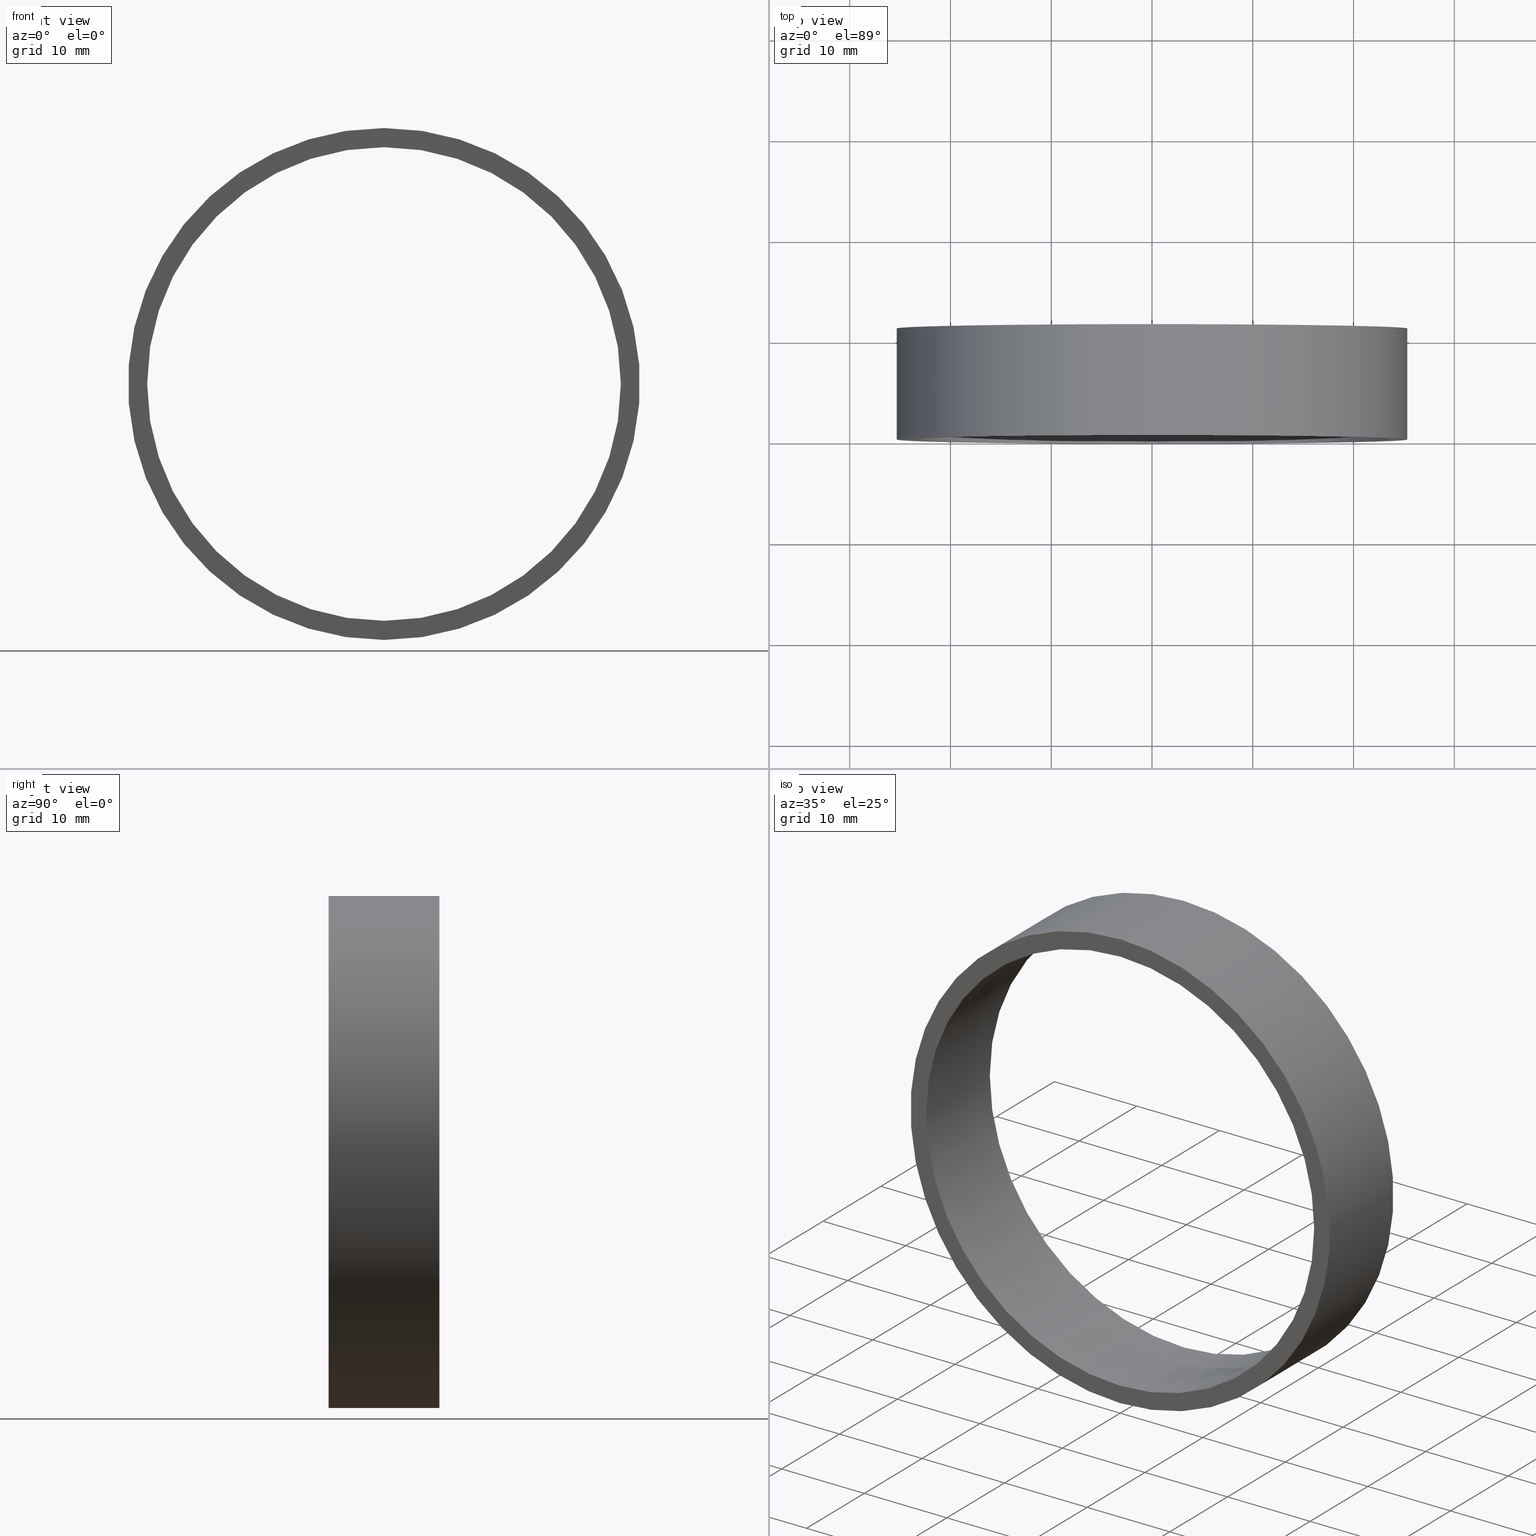
[diagram: canonical four-view strip — front | top / right | iso, engineering-drawing reading convention]
A machine part, canonical four-view strip (front | top / right | iso — engineering-drawing reading convention). The complete STEP part file that produces these views, byte-faithful:
ISO-10303-21;
HEADER;
FILE_DESCRIPTION (( 'STEP AP214' ),
    '1' );
FILE_NAME ('504019.STEP',
    '2019-09-05T06:47:34',
    ( 'user' ),
    ( '΢���й�' ),
    'SwSTEP 2.0',
    'SolidWorks 2016',
    '' );
FILE_SCHEMA (( 'AUTOMOTIVE_DESIGN' ));
ENDSEC;

DATA;
#1 = AXIS2_PLACEMENT_3D ( 'NONE', #43, #175, #105 ) ;
#2 = CARTESIAN_POINT ( 'NONE',  ( 0.0000000000000000000, 11.00000000000000000, 0.0000000000000000000 ) ) ;
#3 = ORIENTED_EDGE ( 'NONE', *, *, #157, .T. ) ;
#4 = AXIS2_PLACEMENT_3D ( 'NONE', #34, #112, #230 ) ;
#5 =( GEOMETRIC_REPRESENTATION_CONTEXT ( 3 ) GLOBAL_UNCERTAINTY_ASSIGNED_CONTEXT ( ( #114 ) ) GLOBAL_UNIT_ASSIGNED_CONTEXT ( ( #180, #206, #178 ) ) REPRESENTATION_CONTEXT ( 'NONE', 'WORKASPACE' ) );
#6 = EDGE_CURVE ( 'NONE', #135, #198, #100, .T. ) ;
#7 = ORIENTED_EDGE ( 'NONE', *, *, #42, .T. ) ;
#8 = AXIS2_PLACEMENT_3D ( 'NONE', #194, #132, #152 ) ;
#9 = FILL_AREA_STYLE ('',( #11 ) ) ;
#10 = DIRECTION ( 'NONE',  ( -0.0000000000000000000, -1.000000000000000000, -0.0000000000000000000 ) ) ;
#11 = FILL_AREA_STYLE_COLOUR ( '', #116 ) ;
#12 = AXIS2_PLACEMENT_3D ( 'NONE', #227, #140, #109 ) ;
#13 = DIRECTION ( 'NONE',  ( 0.0000000000000000000, 0.0000000000000000000, -1.000000000000000000 ) ) ;
#14 = VECTOR ( 'NONE', #188, 1000.000000000000000 ) ;
#15 = SURFACE_STYLE_USAGE ( .BOTH. , #128 ) ;
#16 = CARTESIAN_POINT ( 'NONE',  ( 2.877919977996280700E-015, 11.00000000000000000, 23.50000000000000400 ) ) ;
#17 = AXIS2_PLACEMENT_3D ( 'NONE', #123, #48, #89 ) ;
#18 = ORIENTED_EDGE ( 'NONE', *, *, #213, .F. ) ;
#19 = DIRECTION ( 'NONE',  ( 0.0000000000000000000, 0.0000000000000000000, 1.000000000000000000 ) ) ;
#20 = DIRECTION ( 'NONE',  ( 0.0000000000000000000, 0.0000000000000000000, 1.000000000000000000 ) ) ;
#21 = EDGE_CURVE ( 'NONE', #144, #159, #173, .T. ) ;
#22 =( LENGTH_UNIT ( ) NAMED_UNIT ( * ) SI_UNIT ( .MILLI., .METRE. ) );
#23 =( NAMED_UNIT ( * ) SI_UNIT ( $, .STERADIAN. ) SOLID_ANGLE_UNIT ( ) );
#24 = MECHANICAL_DESIGN_GEOMETRIC_PRESENTATION_REPRESENTATION (  '', ( #76 ), #207 ) ;
#25 = DIRECTION ( 'NONE',  ( 1.000000000000000000, 0.0000000000000000000, 0.0000000000000000000 ) ) ;
#26 = PRESENTATION_LAYER_ASSIGNMENT (  '', '', ( #139 ) ) ;
#27 = FACE_BOUND ( 'NONE', #98, .T. ) ;
#28 = AXIS2_PLACEMENT_3D ( 'NONE', #38, #102, #40 ) ;
#29 = CARTESIAN_POINT ( 'NONE',  ( 3.110602869834276900E-015, 11.00000000000000000, 25.39999999999999900 ) ) ;
#30 = FACE_OUTER_BOUND ( 'NONE', #162, .T. ) ;
#31 =( GEOMETRIC_REPRESENTATION_CONTEXT ( 3 ) GLOBAL_UNCERTAINTY_ASSIGNED_CONTEXT ( ( #158 ) ) GLOBAL_UNIT_ASSIGNED_CONTEXT ( ( #222, #225, #54 ) ) REPRESENTATION_CONTEXT ( 'NONE', 'WORKASPACE' ) );
#32 =( LENGTH_UNIT ( ) NAMED_UNIT ( * ) SI_UNIT ( .MILLI., .METRE. ) );
#33 = ORIENTED_EDGE ( 'NONE', *, *, #80, .T. ) ;
#34 = CARTESIAN_POINT ( 'NONE',  ( 0.0000000000000000000, 0.0000000000000000000, 0.0000000000000000000 ) ) ;
#35 = FACE_OUTER_BOUND ( 'NONE', #228, .T. ) ;
#36 = COLOUR_RGB ( '',1.000000000000000000, 1.000000000000000000, 1.000000000000000000 ) ;
#37 = ORIENTED_EDGE ( 'NONE', *, *, #81, .T. ) ;
#38 = CARTESIAN_POINT ( 'NONE',  ( 0.0000000000000000000, 11.00000000000000000, 0.0000000000000000000 ) ) ;
#39 = EDGE_CURVE ( 'NONE', #144, #168, #244, .T. ) ;
#40 = DIRECTION ( 'NONE',  ( 0.0000000000000000000, 0.0000000000000000000, -1.000000000000000000 ) ) ;
#41 = SHAPE_DEFINITION_REPRESENTATION ( #155, #125 ) ;
#42 = EDGE_CURVE ( 'NONE', #159, #192, #110, .T. ) ;
#43 = CARTESIAN_POINT ( 'NONE',  ( 0.0000000000000000000, 11.00000000000000000, 0.0000000000000000000 ) ) ;
#44 = PRODUCT_DEFINITION ( 'δ֪', '', #115, #161 ) ;
#45 = FILL_AREA_STYLE ('',( #199 ) ) ;
#46 = AXIS2_PLACEMENT_3D ( 'NONE', #150, #52, #237 ) ;
#47 = ORIENTED_EDGE ( 'NONE', *, *, #80, .F. ) ;
#48 = DIRECTION ( 'NONE',  ( 0.0000000000000000000, 1.000000000000000000, 0.0000000000000000000 ) ) ;
#49 = CARTESIAN_POINT ( 'NONE',  ( 0.0000000000000000000, 0.0000000000000000000, 0.0000000000000000000 ) ) ;
#50 = DIRECTION ( 'NONE',  ( 0.0000000000000000000, 0.0000000000000000000, 1.000000000000000000 ) ) ;
#51 = ORIENTED_EDGE ( 'NONE', *, *, #39, .F. ) ;
#52 = DIRECTION ( 'NONE',  ( 0.0000000000000000000, 1.000000000000000000, 0.0000000000000000000 ) ) ;
#53 = CARTESIAN_POINT ( 'NONE',  ( 0.0000000000000000000, 0.0000000000000000000, -23.50000000000000400 ) ) ;
#54 =( NAMED_UNIT ( * ) SI_UNIT ( $, .STERADIAN. ) SOLID_ANGLE_UNIT ( ) );
#55 = FACE_OUTER_BOUND ( 'NONE', #131, .T. ) ;
#56 = SURFACE_STYLE_FILL_AREA ( #219 ) ;
#57 = EDGE_LOOP ( 'NONE', ( #111, #149 ) ) ;
#58 = UNCERTAINTY_MEASURE_WITH_UNIT (LENGTH_MEASURE( 1.000000000000000100E-005 ), #22, 'distance_accuracy_value', 'NONE');
#59 = SURFACE_SIDE_STYLE ('',( #79 ) ) ;
#60 = STYLED_ITEM ( 'NONE', ( #190 ), #99 ) ;
#61 = FILL_AREA_STYLE_COLOUR ( '', #234 ) ;
#62 =( GEOMETRIC_REPRESENTATION_CONTEXT ( 3 ) GLOBAL_UNCERTAINTY_ASSIGNED_CONTEXT ( ( #232 ) ) GLOBAL_UNIT_ASSIGNED_CONTEXT ( ( #231, #223, #23 ) ) REPRESENTATION_CONTEXT ( 'NONE', 'WORKASPACE' ) );
#63 = LINE ( 'NONE', #29, #82 ) ;
#64 = MECHANICAL_DESIGN_GEOMETRIC_PRESENTATION_REPRESENTATION (  '', ( #164 ), #101 ) ;
#65 = PLANE ( 'NONE',  #12 ) ;
#66 = DIRECTION ( 'NONE',  ( 0.0000000000000000000, 1.000000000000000000, 0.0000000000000000000 ) ) ;
#67 = DIRECTION ( 'NONE',  ( 0.0000000000000000000, 0.0000000000000000000, 1.000000000000000000 ) ) ;
#68 = EDGE_CURVE ( 'NONE', #168, #192, #63, .T. ) ;
#69 = ORIENTED_EDGE ( 'NONE', *, *, #157, .F. ) ;
#70 = SURFACE_STYLE_USAGE ( .BOTH. , #195 ) ;
#71 = AXIS2_PLACEMENT_3D ( 'NONE', #88, #66, #147 ) ;
#72 = ORIENTED_EDGE ( 'NONE', *, *, #154, .T. ) ;
#73 = SURFACE_STYLE_FILL_AREA ( #9 ) ;
#74 = CARTESIAN_POINT ( 'NONE',  ( 0.0000000000000000000, 11.00000000000000000, 0.0000000000000000000 ) ) ;
#75 = CYLINDRICAL_SURFACE ( 'NONE', #197, 23.50000000000000400 ) ;
#76 = STYLED_ITEM ( 'NONE', ( #239 ), #108 ) ;
#77 = CARTESIAN_POINT ( 'NONE',  ( 0.0000000000000000000, 11.00000000000000000, 0.0000000000000000000 ) ) ;
#78 = AXIS2_PLACEMENT_3D ( 'NONE', #148, #215, #233 ) ;
#79 = SURFACE_STYLE_FILL_AREA ( #45 ) ;
#80 = EDGE_CURVE ( 'NONE', #189, #134, #166, .T. ) ;
#81 = EDGE_CURVE ( 'NONE', #198, #135, #92, .T. ) ;
#82 = VECTOR ( 'NONE', #196, 1000.000000000000000 ) ;
#83 = EDGE_LOOP ( 'NONE', ( #18, #138, #3, #95 ) ) ;
#84 = DIRECTION ( 'NONE',  ( -0.0000000000000000000, -1.000000000000000000, -0.0000000000000000000 ) ) ;
#85 =( NAMED_UNIT ( * ) PLANE_ANGLE_UNIT ( ) SI_UNIT ( $, .RADIAN. ) );
#86 = ADVANCED_FACE ( 'NONE', ( #209, #27 ), #182, .F. ) ;
#87 = PRESENTATION_LAYER_ASSIGNMENT (  '', '', ( #164 ) ) ;
#88 = CARTESIAN_POINT ( 'NONE',  ( 0.0000000000000000000, 0.0000000000000000000, 0.0000000000000000000 ) ) ;
#89 = DIRECTION ( 'NONE',  ( 0.0000000000000000000, 0.0000000000000000000, 1.000000000000000000 ) ) ;
#90 = CARTESIAN_POINT ( 'NONE',  ( 3.110602869834276900E-015, 11.00000000000000000, 25.39999999999999900 ) ) ;
#91 = CARTESIAN_POINT ( 'NONE',  ( 0.0000000000000000000, 0.0000000000000000000, 0.0000000000000000000 ) ) ;
#92 = CIRCLE ( 'NONE', #126, 23.50000000000000400 ) ;
#93 = EDGE_CURVE ( 'NONE', #135, #134, #186, .T. ) ;
#94 = APPLICATION_CONTEXT ( 'automotive_design' ) ;
#95 = ORIENTED_EDGE ( 'NONE', *, *, #21, .F. ) ;
#96 = COLOUR_RGB ( '',1.000000000000000000, 1.000000000000000000, 1.000000000000000000 ) ;
#97 =( NAMED_UNIT ( * ) SI_UNIT ( $, .STERADIAN. ) SOLID_ANGLE_UNIT ( ) );
#98 = EDGE_LOOP ( 'NONE', ( #179, #33 ) ) ;
#99 = MANIFOLD_SOLID_BREP ( '͹̨-����1', #214 ) ;
#100 = CIRCLE ( 'NONE', #46, 23.50000000000000400 ) ;
#101 =( GEOMETRIC_REPRESENTATION_CONTEXT ( 3 ) GLOBAL_UNCERTAINTY_ASSIGNED_CONTEXT ( ( #58 ) ) GLOBAL_UNIT_ASSIGNED_CONTEXT ( ( #22, #170, #97 ) ) REPRESENTATION_CONTEXT ( 'NONE', 'WORKASPACE' ) );
#102 = DIRECTION ( 'NONE',  ( -0.0000000000000000000, -1.000000000000000000, -0.0000000000000000000 ) ) ;
#103 = ORIENTED_EDGE ( 'NONE', *, *, #154, .F. ) ;
#104 = ORIENTED_EDGE ( 'NONE', *, *, #68, .F. ) ;
#105 = DIRECTION ( 'NONE',  ( 0.0000000000000000000, 0.0000000000000000000, 1.000000000000000000 ) ) ;
#106 = FACE_OUTER_BOUND ( 'NONE', #83, .T. ) ;
#107 = CARTESIAN_POINT ( 'NONE',  ( 0.0000000000000000000, 11.00000000000000000, -25.39999999999999900 ) ) ;
#108 = ADVANCED_FACE ( 'NONE', ( #55 ), #75, .F. ) ;
#109 = DIRECTION ( 'NONE',  ( 0.0000000000000000000, -0.0000000000000000000, 1.000000000000000000 ) ) ;
#110 = CIRCLE ( 'NONE', #130, 25.39999999999999900 ) ;
#111 = ORIENTED_EDGE ( 'NONE', *, *, #6, .F. ) ;
#112 = DIRECTION ( 'NONE',  ( 0.0000000000000000000, 1.000000000000000000, 0.0000000000000000000 ) ) ;
#113 = APPLICATION_PROTOCOL_DEFINITION ( 'draft international standard', 'automotive_design', 1998, #193 ) ;
#114 = UNCERTAINTY_MEASURE_WITH_UNIT (LENGTH_MEASURE( 1.000000000000000100E-005 ), #180, 'distance_accuracy_value', 'NONE');
#115 = PRODUCT_DEFINITION_FORMATION_WITH_SPECIFIED_SOURCE ( '�κ�', '', #202, .NOT_KNOWN. ) ;
#116 = COLOUR_RGB ( '',1.000000000000000000, 1.000000000000000000, 1.000000000000000000 ) ;
#117 = CARTESIAN_POINT ( 'NONE',  ( 0.0000000000000000000, 0.0000000000000000000, -25.39999999999999900 ) ) ;
#118 = MECHANICAL_DESIGN_GEOMETRIC_PRESENTATION_REPRESENTATION (  '', ( #60 ), #5 ) ;
#119 = UNCERTAINTY_MEASURE_WITH_UNIT (LENGTH_MEASURE( 1.000000000000000100E-005 ), #32, 'distance_accuracy_value', 'NONE');
#120 = SURFACE_STYLE_USAGE ( .BOTH. , #59 ) ;
#121 = CYLINDRICAL_SURFACE ( 'NONE', #169, 25.39999999999999900 ) ;
#122 = CIRCLE ( 'NONE', #1, 25.39999999999999900 ) ;
#123 = CARTESIAN_POINT ( 'NONE',  ( 0.0000000000000000000, 11.00000000000000000, 0.0000000000000000000 ) ) ;
#124 = APPLICATION_PROTOCOL_DEFINITION ( 'draft international standard', 'automotive_design', 1998, #94 ) ;
#125 = ADVANCED_BREP_SHAPE_REPRESENTATION ( '504019', ( #99, #229 ), #62 ) ;
#126 = AXIS2_PLACEMENT_3D ( 'NONE', #2, #142, #19 ) ;
#127 = LINE ( 'NONE', #16, #14 ) ;
#128 = SURFACE_SIDE_STYLE ('',( #56 ) ) ;
#129 = DIRECTION ( 'NONE',  ( 0.0000000000000000000, 1.000000000000000000, 0.0000000000000000000 ) ) ;
#130 = AXIS2_PLACEMENT_3D ( 'NONE', #49, #129, #20 ) ;
#131 = EDGE_LOOP ( 'NONE', ( #103, #37, #143, #47 ) ) ;
#132 = DIRECTION ( 'NONE',  ( -0.0000000000000000000, -1.000000000000000000, -0.0000000000000000000 ) ) ;
#133 = PRESENTATION_LAYER_ASSIGNMENT (  '', '', ( #60 ) ) ;
#134 = VERTEX_POINT ( 'NONE', #53 ) ;
#135 = VERTEX_POINT ( 'NONE', #217 ) ;
#136 = SURFACE_STYLE_USAGE ( .BOTH. , #241 ) ;
#137 = ORIENTED_EDGE ( 'NONE', *, *, #39, .T. ) ;
#138 = ORIENTED_EDGE ( 'NONE', *, *, #68, .T. ) ;
#139 = STYLED_ITEM ( 'NONE', ( #238 ), #181 ) ;
#140 = DIRECTION ( 'NONE',  ( 0.0000000000000000000, 1.000000000000000000, 0.0000000000000000000 ) ) ;
#141 = DIRECTION ( 'NONE',  ( 0.0000000000000000000, 0.0000000000000000000, -1.000000000000000000 ) ) ;
#142 = DIRECTION ( 'NONE',  ( 0.0000000000000000000, 1.000000000000000000, 0.0000000000000000000 ) ) ;
#143 = ORIENTED_EDGE ( 'NONE', *, *, #93, .T. ) ;
#144 = VERTEX_POINT ( 'NONE', #208 ) ;
#145 = PRESENTATION_STYLE_ASSIGNMENT (( #70 ) ) ;
#146 = ORIENTED_EDGE ( 'NONE', *, *, #174, .F. ) ;
#147 = DIRECTION ( 'NONE',  ( 0.0000000000000000000, -0.0000000000000000000, 1.000000000000000000 ) ) ;
#148 = CARTESIAN_POINT ( 'NONE',  ( 0.0000000000000000000, 0.0000000000000000000, 0.0000000000000000000 ) ) ;
#149 = ORIENTED_EDGE ( 'NONE', *, *, #81, .F. ) ;
#150 = CARTESIAN_POINT ( 'NONE',  ( 0.0000000000000000000, 11.00000000000000000, 0.0000000000000000000 ) ) ;
#151 = CYLINDRICAL_SURFACE ( 'NONE', #28, 23.50000000000000400 ) ;
#152 = DIRECTION ( 'NONE',  ( 0.0000000000000000000, 0.0000000000000000000, -1.000000000000000000 ) ) ;
#153 = CARTESIAN_POINT ( 'NONE',  ( 0.0000000000000000000, 11.00000000000000000, -23.50000000000000400 ) ) ;
#154 = EDGE_CURVE ( 'NONE', #198, #189, #127, .T. ) ;
#155 = PRODUCT_DEFINITION_SHAPE ( 'NONE', 'NONE',  #44 ) ;
#156 = CARTESIAN_POINT ( 'NONE',  ( 2.877919977996280700E-015, 0.0000000000000000000, 23.50000000000000400 ) ) ;
#157 = EDGE_CURVE ( 'NONE', #192, #159, #171, .T. ) ;
#158 = UNCERTAINTY_MEASURE_WITH_UNIT (LENGTH_MEASURE( 1.000000000000000100E-005 ), #222, 'distance_accuracy_value', 'NONE');
#159 = VERTEX_POINT ( 'NONE', #117 ) ;
#160 = SURFACE_STYLE_FILL_AREA ( #204 ) ;
#161 = PRODUCT_DEFINITION_CONTEXT ( 'detailed design', #94, 'design' ) ;
#162 = EDGE_LOOP ( 'NONE', ( #137, #218 ) ) ;
#163 = FILL_AREA_STYLE_COLOUR ( '', #36 ) ;
#164 = STYLED_ITEM ( 'NONE', ( #145 ), #125 ) ;
#165 = ORIENTED_EDGE ( 'NONE', *, *, #93, .F. ) ;
#166 = CIRCLE ( 'NONE', #4, 23.50000000000000400 ) ;
#167 = ORIENTED_EDGE ( 'NONE', *, *, #6, .T. ) ;
#168 = VERTEX_POINT ( 'NONE', #90 ) ;
#169 = AXIS2_PLACEMENT_3D ( 'NONE', #74, #10, #13 ) ;
#170 =( NAMED_UNIT ( * ) PLANE_ANGLE_UNIT ( ) SI_UNIT ( $, .RADIAN. ) );
#171 = CIRCLE ( 'NONE', #191, 25.39999999999999900 ) ;
#172 = EDGE_LOOP ( 'NONE', ( #167, #72, #146, #165 ) ) ;
#173 = LINE ( 'NONE', #107, #240 ) ;
#174 = EDGE_CURVE ( 'NONE', #134, #189, #243, .T. ) ;
#175 = DIRECTION ( 'NONE',  ( 0.0000000000000000000, 1.000000000000000000, 0.0000000000000000000 ) ) ;
#176 = ORIENTED_EDGE ( 'NONE', *, *, #21, .T. ) ;
#177 = CARTESIAN_POINT ( 'NONE',  ( 2.877919977996280700E-015, 11.00000000000000000, 23.50000000000000400 ) ) ;
#178 =( NAMED_UNIT ( * ) SI_UNIT ( $, .STERADIAN. ) SOLID_ANGLE_UNIT ( ) );
#179 = ORIENTED_EDGE ( 'NONE', *, *, #174, .T. ) ;
#180 =( LENGTH_UNIT ( ) NAMED_UNIT ( * ) SI_UNIT ( .MILLI., .METRE. ) );
#181 = ADVANCED_FACE ( 'NONE', ( #236 ), #151, .F. ) ;
#182 = PLANE ( 'NONE',  #71 ) ;
#183 = MECHANICAL_DESIGN_GEOMETRIC_PRESENTATION_REPRESENTATION (  '', ( #139 ), #31 ) ;
#184 = CARTESIAN_POINT ( 'NONE',  ( 3.110602869834276900E-015, 0.0000000000000000000, 25.39999999999999900 ) ) ;
#185 = EDGE_LOOP ( 'NONE', ( #200, #69 ) ) ;
#186 = LINE ( 'NONE', #153, #187 ) ;
#187 = VECTOR ( 'NONE', #212, 1000.000000000000000 ) ;
#188 = DIRECTION ( 'NONE',  ( -0.0000000000000000000, -1.000000000000000000, -0.0000000000000000000 ) ) ;
#189 = VERTEX_POINT ( 'NONE', #156 ) ;
#190 = PRESENTATION_STYLE_ASSIGNMENT (( #136 ) ) ;
#191 = AXIS2_PLACEMENT_3D ( 'NONE', #203, #210, #50 ) ;
#192 = VERTEX_POINT ( 'NONE', #184 ) ;
#193 = APPLICATION_CONTEXT ( 'automotive_design' ) ;
#194 = CARTESIAN_POINT ( 'NONE',  ( 0.0000000000000000000, 11.00000000000000000, 0.0000000000000000000 ) ) ;
#195 = SURFACE_SIDE_STYLE ('',( #73 ) ) ;
#196 = DIRECTION ( 'NONE',  ( -0.0000000000000000000, -1.000000000000000000, -0.0000000000000000000 ) ) ;
#197 = AXIS2_PLACEMENT_3D ( 'NONE', #77, #211, #141 ) ;
#198 = VERTEX_POINT ( 'NONE', #177 ) ;
#199 = FILL_AREA_STYLE_COLOUR ( '', #96 ) ;
#200 = ORIENTED_EDGE ( 'NONE', *, *, #42, .F. ) ;
#201 = PRESENTATION_LAYER_ASSIGNMENT (  '', '', ( #76 ) ) ;
#202 = PRODUCT ( '504019', '504019', '', ( #220 ) ) ;
#203 = CARTESIAN_POINT ( 'NONE',  ( 0.0000000000000000000, 0.0000000000000000000, 0.0000000000000000000 ) ) ;
#204 = FILL_AREA_STYLE ('',( #163 ) ) ;
#205 = FACE_BOUND ( 'NONE', #57, .T. ) ;
#206 =( NAMED_UNIT ( * ) PLANE_ANGLE_UNIT ( ) SI_UNIT ( $, .RADIAN. ) );
#207 =( GEOMETRIC_REPRESENTATION_CONTEXT ( 3 ) GLOBAL_UNCERTAINTY_ASSIGNED_CONTEXT ( ( #119 ) ) GLOBAL_UNIT_ASSIGNED_CONTEXT ( ( #32, #85, #224 ) ) REPRESENTATION_CONTEXT ( 'NONE', 'WORKASPACE' ) );
#208 = CARTESIAN_POINT ( 'NONE',  ( 0.0000000000000000000, 11.00000000000000000, -25.39999999999999900 ) ) ;
#209 = FACE_OUTER_BOUND ( 'NONE', #185, .T. ) ;
#210 = DIRECTION ( 'NONE',  ( 0.0000000000000000000, 1.000000000000000000, 0.0000000000000000000 ) ) ;
#211 = DIRECTION ( 'NONE',  ( -0.0000000000000000000, -1.000000000000000000, -0.0000000000000000000 ) ) ;
#212 = DIRECTION ( 'NONE',  ( -0.0000000000000000000, -1.000000000000000000, -0.0000000000000000000 ) ) ;
#213 = EDGE_CURVE ( 'NONE', #168, #144, #122, .T. ) ;
#214 = CLOSED_SHELL ( 'NONE', ( #181, #216, #242, #86, #226, #108 ) ) ;
#215 = DIRECTION ( 'NONE',  ( 0.0000000000000000000, 1.000000000000000000, 0.0000000000000000000 ) ) ;
#216 = ADVANCED_FACE ( 'NONE', ( #106 ), #235, .T. ) ;
#217 = CARTESIAN_POINT ( 'NONE',  ( 0.0000000000000000000, 11.00000000000000000, -23.50000000000000400 ) ) ;
#218 = ORIENTED_EDGE ( 'NONE', *, *, #213, .T. ) ;
#219 = FILL_AREA_STYLE ('',( #61 ) ) ;
#220 = PRODUCT_CONTEXT ( 'NONE', #193, 'mechanical' ) ;
#221 = PRODUCT_RELATED_PRODUCT_CATEGORY ( 'part', '', ( #202 ) ) ;
#222 =( LENGTH_UNIT ( ) NAMED_UNIT ( * ) SI_UNIT ( .MILLI., .METRE. ) );
#223 =( NAMED_UNIT ( * ) PLANE_ANGLE_UNIT ( ) SI_UNIT ( $, .RADIAN. ) );
#224 =( NAMED_UNIT ( * ) SI_UNIT ( $, .STERADIAN. ) SOLID_ANGLE_UNIT ( ) );
#225 =( NAMED_UNIT ( * ) PLANE_ANGLE_UNIT ( ) SI_UNIT ( $, .RADIAN. ) );
#226 = ADVANCED_FACE ( 'NONE', ( #35 ), #121, .T. ) ;
#227 = CARTESIAN_POINT ( 'NONE',  ( 0.0000000000000000000, 11.00000000000000000, 0.0000000000000000000 ) ) ;
#228 = EDGE_LOOP ( 'NONE', ( #104, #51, #176, #7 ) ) ;
#229 = AXIS2_PLACEMENT_3D ( 'NONE', #91, #67, #25 ) ;
#230 = DIRECTION ( 'NONE',  ( 0.0000000000000000000, 0.0000000000000000000, 1.000000000000000000 ) ) ;
#231 =( LENGTH_UNIT ( ) NAMED_UNIT ( * ) SI_UNIT ( .MILLI., .METRE. ) );
#232 = UNCERTAINTY_MEASURE_WITH_UNIT (LENGTH_MEASURE( 1.000000000000000100E-005 ), #231, 'distance_accuracy_value', 'NONE');
#233 = DIRECTION ( 'NONE',  ( 0.0000000000000000000, 0.0000000000000000000, 1.000000000000000000 ) ) ;
#234 = COLOUR_RGB ( '',1.000000000000000000, 1.000000000000000000, 1.000000000000000000 ) ;
#235 = CYLINDRICAL_SURFACE ( 'NONE', #8, 25.39999999999999900 ) ;
#236 = FACE_OUTER_BOUND ( 'NONE', #172, .T. ) ;
#237 = DIRECTION ( 'NONE',  ( 0.0000000000000000000, 0.0000000000000000000, 1.000000000000000000 ) ) ;
#238 = PRESENTATION_STYLE_ASSIGNMENT (( #120 ) ) ;
#239 = PRESENTATION_STYLE_ASSIGNMENT (( #15 ) ) ;
#240 = VECTOR ( 'NONE', #84, 1000.000000000000000 ) ;
#241 = SURFACE_SIDE_STYLE ('',( #160 ) ) ;
#242 = ADVANCED_FACE ( 'NONE', ( #30, #205 ), #65, .T. ) ;
#243 = CIRCLE ( 'NONE', #78, 23.50000000000000400 ) ;
#244 = CIRCLE ( 'NONE', #17, 25.39999999999999900 ) ;
ENDSEC;
END-ISO-10303-21;
